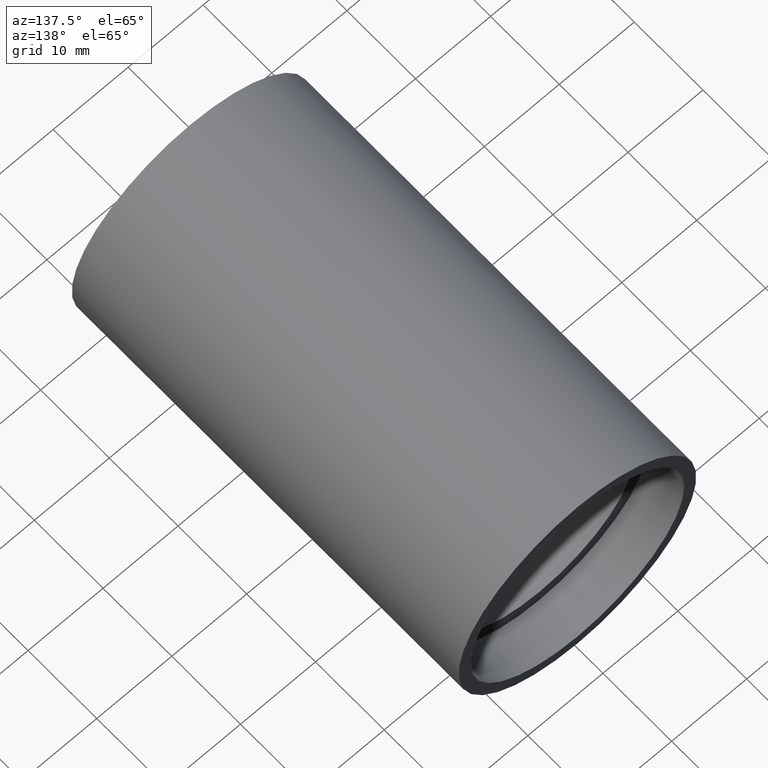
[diagram: clean part render]
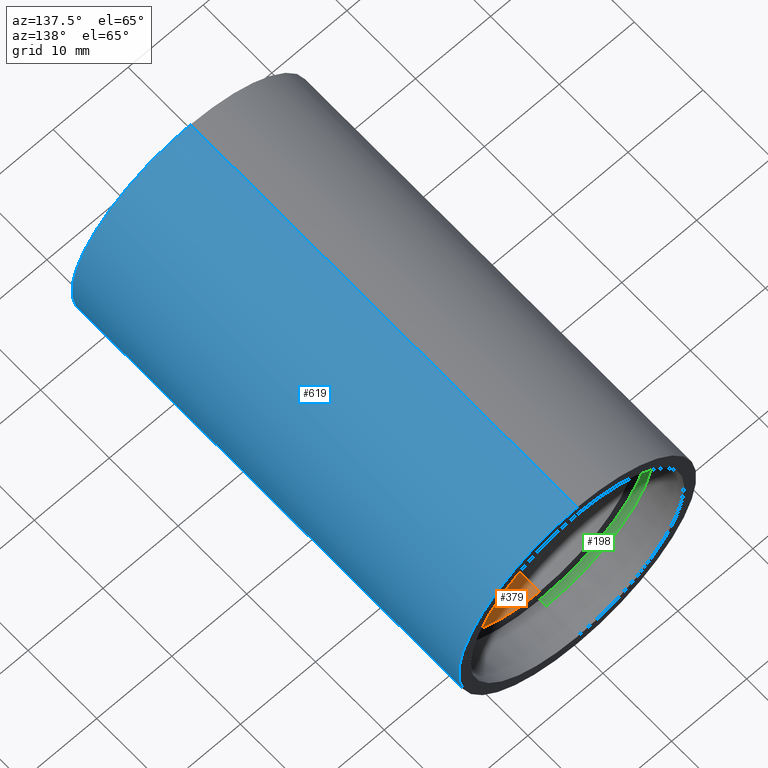
[diagram: same view with three faces highlighted in distinct colors, each labeled with its STEP entity id]
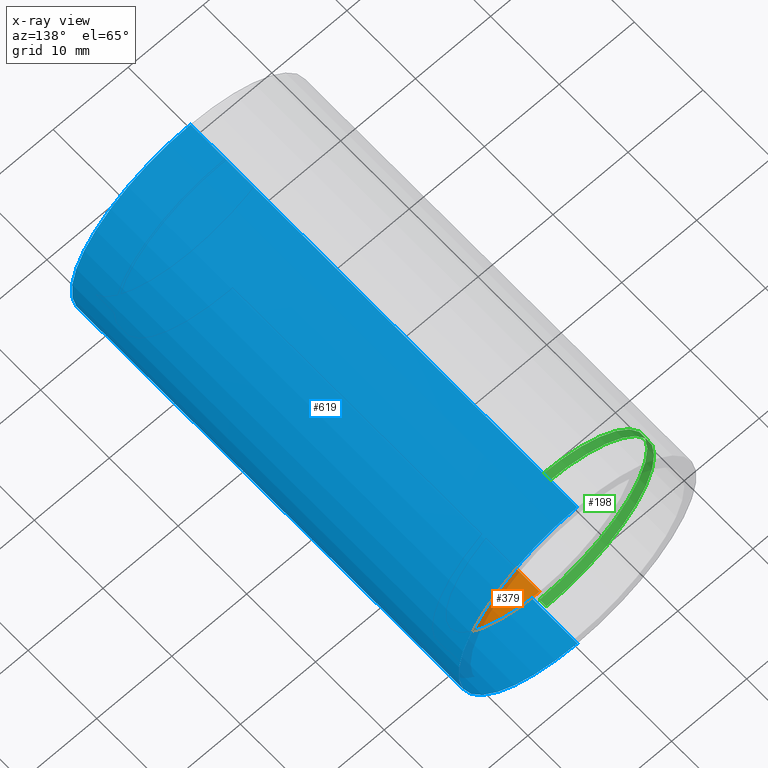
[diagram: x-ray of the same camera — body ghosted, the three highlighted faces saturated]
A machine part, auxiliary view with three faces highlighted in distinct colors.
The next image is the same camera in x-ray (body ghosted, the three faces saturated) — at least one of them is partly hidden behind the body in this view.
Their STEP definitions:

[orange] entity #379 — the highlighted cylindrical surface (partial cylindrical patch) has radius 12.5 mm, axis along (-0, 1, -0).
#4 = ORIENTED_EDGE ( 'NONE', *, *, #222, .T. ) ;
#8 = DIRECTION ( 'NONE',  ( 0.0000000000000000000, 0.0000000000000000000, 1.000000000000000000 ) ) ;
#38 = DIRECTION ( 'NONE',  ( -0.0000000000000000000, 1.000000000000000000, -0.0000000000000000000 ) ) ;
#41 = DIRECTION ( 'NONE',  ( -0.0000000000000000000, 1.000000000000000000, -0.0000000000000000000 ) ) ;
#44 = AXIS2_PLACEMENT_3D ( 'NONE', #85, #41, #144 ) ;
#50 = VERTEX_POINT ( 'NONE', #514 ) ;
#54 = CARTESIAN_POINT ( 'NONE',  ( 0.0000000000000000000, 161.3761669434274500, 0.0000000000000000000 ) ) ;
#85 = CARTESIAN_POINT ( 'NONE',  ( 0.0000000000000000000, 50.79999999999996900, 0.0000000000000000000 ) ) ;
#91 = CARTESIAN_POINT ( 'NONE',  ( 1.530808498934193900E-015, 50.79999999999996900, -12.50000000000002000 ) ) ;
#94 = CIRCLE ( 'NONE', #499, 12.50000000000002000 ) ;
#98 = DIRECTION ( 'NONE',  ( 0.0000000000000000000, 0.0000000000000000000, 1.000000000000000000 ) ) ;
#109 = LINE ( 'NONE', #574, #473 ) ;
#144 = DIRECTION ( 'NONE',  ( 0.0000000000000000000, 0.0000000000000000000, 1.000000000000000000 ) ) ;
#154 = DIRECTION ( 'NONE',  ( -0.0000000000000000000, 1.000000000000000000, -0.0000000000000000000 ) ) ;
#173 = EDGE_CURVE ( 'NONE', #50, #181, #109, .T. ) ;
#181 = VERTEX_POINT ( 'NONE', #424 ) ;
#207 = LINE ( 'NONE', #351, #456 ) ;
#222 = EDGE_CURVE ( 'NONE', #181, #333, #249, .T. ) ;
#248 = DIRECTION ( 'NONE',  ( -0.0000000000000000000, 1.000000000000000000, -0.0000000000000000000 ) ) ;
#249 = CIRCLE ( 'NONE', #44, 12.50000000000002000 ) ;
#333 = VERTEX_POINT ( 'NONE', #91 ) ;
#334 = CYLINDRICAL_SURFACE ( 'NONE', #606, 12.50000000000002000 ) ;
#345 = EDGE_CURVE ( 'NONE', #50, #542, #94, .T. ) ;
#351 = CARTESIAN_POINT ( 'NONE',  ( 1.530808498934193900E-015, 161.3761669434274500, -12.50000000000002000 ) ) ;
#355 = EDGE_CURVE ( 'NONE', #542, #333, #207, .T. ) ;
#379 = ADVANCED_FACE ( 'NONE', ( #581 ), #334, .F. ) ;
#382 = ORIENTED_EDGE ( 'NONE', *, *, #345, .F. ) ;
#406 = DIRECTION ( 'NONE',  ( -0.0000000000000000000, 1.000000000000000000, -0.0000000000000000000 ) ) ;
#424 = CARTESIAN_POINT ( 'NONE',  ( 0.0000000000000000000, 50.79999999999996900, 12.50000000000002000 ) ) ;
#453 = CARTESIAN_POINT ( 'NONE',  ( 0.0000000000000000000, 5.499999999999976900, 0.0000000000000000000 ) ) ;
#456 = VECTOR ( 'NONE', #154, 1000.000000000000000 ) ;
#473 = VECTOR ( 'NONE', #38, 1000.000000000000000 ) ;
#497 = ORIENTED_EDGE ( 'NONE', *, *, #355, .F. ) ;
#499 = AXIS2_PLACEMENT_3D ( 'NONE', #453, #248, #8 ) ;
#514 = CARTESIAN_POINT ( 'NONE',  ( 0.0000000000000000000, 5.499999999999976900, 12.50000000000002000 ) ) ;
#519 = ORIENTED_EDGE ( 'NONE', *, *, #173, .T. ) ;
#542 = VERTEX_POINT ( 'NONE', #593 ) ;
#574 = CARTESIAN_POINT ( 'NONE',  ( 0.0000000000000000000, 161.3761669434274500, 12.50000000000002000 ) ) ;
#581 = FACE_OUTER_BOUND ( 'NONE', #584, .T. ) ;
#584 = EDGE_LOOP ( 'NONE', ( #497, #382, #519, #4 ) ) ;
#593 = CARTESIAN_POINT ( 'NONE',  ( 1.530808498934193900E-015, 5.499999999999976900, -12.50000000000002000 ) ) ;
#606 = AXIS2_PLACEMENT_3D ( 'NONE', #54, #406, #98 ) ;

[blue] entity #619 — the highlighted cylindrical surface (partial cylindrical patch) has radius 15.85 mm, axis along (-0, 1, -0).
#2 = ORIENTED_EDGE ( 'NONE', *, *, #159, .T. ) ;
#7 = LINE ( 'NONE', #386, #153 ) ;
#11 = CARTESIAN_POINT ( 'NONE',  ( 1.941065176648557100E-015, 56.29999999999999000, -15.85000000000002100 ) ) ;
#12 = AXIS2_PLACEMENT_3D ( 'NONE', #34, #385, #185 ) ;
#34 = CARTESIAN_POINT ( 'NONE',  ( 0.0000000000000000000, -2.775557561562891400E-014, 0.0000000000000000000 ) ) ;
#77 = VERTEX_POINT ( 'NONE', #110 ) ;
#80 = AXIS2_PLACEMENT_3D ( 'NONE', #323, #320, #178 ) ;
#86 = DIRECTION ( 'NONE',  ( 0.0000000000000000000, 0.0000000000000000000, 1.000000000000000000 ) ) ;
#87 = LINE ( 'NONE', #623, #592 ) ;
#110 = CARTESIAN_POINT ( 'NONE',  ( 0.0000000000000000000, 56.29999999999999000, 15.85000000000002100 ) ) ;
#153 = VECTOR ( 'NONE', #435, 1000.000000000000000 ) ;
#159 = EDGE_CURVE ( 'NONE', #361, #340, #518, .T. ) ;
#178 = DIRECTION ( 'NONE',  ( 0.0000000000000000000, 0.0000000000000000000, 1.000000000000000000 ) ) ;
#182 = EDGE_CURVE ( 'NONE', #361, #77, #7, .T. ) ;
#185 = DIRECTION ( 'NONE',  ( 0.0000000000000000000, 0.0000000000000000000, 1.000000000000000000 ) ) ;
#231 = EDGE_CURVE ( 'NONE', #77, #375, #612, .T. ) ;
#261 = CYLINDRICAL_SURFACE ( 'NONE', #80, 15.85000000000002100 ) ;
#276 = EDGE_CURVE ( 'NONE', #340, #375, #87, .T. ) ;
#287 = EDGE_LOOP ( 'NONE', ( #2, #594, #409, #293 ) ) ;
#293 = ORIENTED_EDGE ( 'NONE', *, *, #182, .F. ) ;
#299 = CARTESIAN_POINT ( 'NONE',  ( 1.941065176648557100E-015, -2.775557561562891400E-014, -15.85000000000002100 ) ) ;
#305 = FACE_OUTER_BOUND ( 'NONE', #287, .T. ) ;
#306 = CARTESIAN_POINT ( 'NONE',  ( 0.0000000000000000000, -2.775557561562891400E-014, 15.85000000000002100 ) ) ;
#320 = DIRECTION ( 'NONE',  ( -0.0000000000000000000, 1.000000000000000000, -0.0000000000000000000 ) ) ;
#321 = AXIS2_PLACEMENT_3D ( 'NONE', #338, #535, #86 ) ;
#323 = CARTESIAN_POINT ( 'NONE',  ( 0.0000000000000000000, 161.3761669434274500, 0.0000000000000000000 ) ) ;
#338 = CARTESIAN_POINT ( 'NONE',  ( 0.0000000000000000000, 56.29999999999999000, 0.0000000000000000000 ) ) ;
#340 = VERTEX_POINT ( 'NONE', #299 ) ;
#361 = VERTEX_POINT ( 'NONE', #306 ) ;
#375 = VERTEX_POINT ( 'NONE', #11 ) ;
#385 = DIRECTION ( 'NONE',  ( -0.0000000000000000000, 1.000000000000000000, -0.0000000000000000000 ) ) ;
#386 = CARTESIAN_POINT ( 'NONE',  ( 0.0000000000000000000, 161.3761669434274500, 15.85000000000002100 ) ) ;
#409 = ORIENTED_EDGE ( 'NONE', *, *, #231, .F. ) ;
#435 = DIRECTION ( 'NONE',  ( -0.0000000000000000000, 1.000000000000000000, -0.0000000000000000000 ) ) ;
#439 = DIRECTION ( 'NONE',  ( -0.0000000000000000000, 1.000000000000000000, -0.0000000000000000000 ) ) ;
#518 = CIRCLE ( 'NONE', #12, 15.85000000000002100 ) ;
#535 = DIRECTION ( 'NONE',  ( -0.0000000000000000000, 1.000000000000000000, -0.0000000000000000000 ) ) ;
#592 = VECTOR ( 'NONE', #439, 1000.000000000000000 ) ;
#594 = ORIENTED_EDGE ( 'NONE', *, *, #276, .T. ) ;
#612 = CIRCLE ( 'NONE', #321, 15.85000000000002100 ) ;
#619 = ADVANCED_FACE ( 'NONE', ( #305 ), #261, .T. ) ;
#623 = CARTESIAN_POINT ( 'NONE',  ( 1.941065176648557100E-015, 161.3761669434274500, -15.85000000000002100 ) ) ;

[green] entity #198 — the highlighted cylindrical surface (partial cylindrical patch) has radius 14.35 mm, axis along (-0, 1, -0).
#16 = VERTEX_POINT ( 'NONE', #107 ) ;
#18 = CARTESIAN_POINT ( 'NONE',  ( 1.757368156776453600E-015, 51.79999999999996900, -14.35000000000001200 ) ) ;
#20 = VECTOR ( 'NONE', #22, 1000.000000000000000 ) ;
#22 = DIRECTION ( 'NONE',  ( -0.0000000000000000000, 1.000000000000000000, -0.0000000000000000000 ) ) ;
#27 = VERTEX_POINT ( 'NONE', #18 ) ;
#36 = CIRCLE ( 'NONE', #56, 14.35000000000001200 ) ;
#56 = AXIS2_PLACEMENT_3D ( 'NONE', #63, #408, #314 ) ;
#63 = CARTESIAN_POINT ( 'NONE',  ( 0.0000000000000000000, 50.79999999999996900, 0.0000000000000000000 ) ) ;
#78 = CARTESIAN_POINT ( 'NONE',  ( 0.0000000000000000000, 161.3761669434274500, 0.0000000000000000000 ) ) ;
#95 = EDGE_LOOP ( 'NONE', ( #390, #149, #112, #227 ) ) ;
#107 = CARTESIAN_POINT ( 'NONE',  ( 1.757368156776453600E-015, 50.79999999999996900, -14.35000000000001200 ) ) ;
#112 = ORIENTED_EDGE ( 'NONE', *, *, #472, .T. ) ;
#149 = ORIENTED_EDGE ( 'NONE', *, *, #512, .T. ) ;
#152 = CIRCLE ( 'NONE', #209, 14.35000000000001200 ) ;
#161 = DIRECTION ( 'NONE',  ( 0.0000000000000000000, 0.0000000000000000000, 1.000000000000000000 ) ) ;
#197 = AXIS2_PLACEMENT_3D ( 'NONE', #78, #281, #611 ) ;
#198 = ADVANCED_FACE ( 'NONE', ( #618 ), #510, .F. ) ;
#209 = AXIS2_PLACEMENT_3D ( 'NONE', #600, #597, #161 ) ;
#227 = ORIENTED_EDGE ( 'NONE', *, *, #562, .F. ) ;
#281 = DIRECTION ( 'NONE',  ( -0.0000000000000000000, 1.000000000000000000, -0.0000000000000000000 ) ) ;
#307 = CARTESIAN_POINT ( 'NONE',  ( 0.0000000000000000000, 50.79999999999996900, 14.35000000000001200 ) ) ;
#314 = DIRECTION ( 'NONE',  ( 0.0000000000000000000, 0.0000000000000000000, 1.000000000000000000 ) ) ;
#359 = CARTESIAN_POINT ( 'NONE',  ( 0.0000000000000000000, 161.3761669434274500, 14.35000000000001200 ) ) ;
#368 = LINE ( 'NONE', #359, #20 ) ;
#390 = ORIENTED_EDGE ( 'NONE', *, *, #505, .F. ) ;
#408 = DIRECTION ( 'NONE',  ( -0.0000000000000000000, 1.000000000000000000, -0.0000000000000000000 ) ) ;
#438 = VECTOR ( 'NONE', #546, 1000.000000000000000 ) ;
#461 = CARTESIAN_POINT ( 'NONE',  ( 0.0000000000000000000, 51.79999999999996900, 14.35000000000001200 ) ) ;
#468 = LINE ( 'NONE', #545, #438 ) ;
#472 = EDGE_CURVE ( 'NONE', #27, #534, #152, .T. ) ;
#505 = EDGE_CURVE ( 'NONE', #16, #529, #36, .T. ) ;
#510 = CYLINDRICAL_SURFACE ( 'NONE', #197, 14.35000000000001200 ) ;
#512 = EDGE_CURVE ( 'NONE', #16, #27, #468, .T. ) ;
#529 = VERTEX_POINT ( 'NONE', #307 ) ;
#534 = VERTEX_POINT ( 'NONE', #461 ) ;
#545 = CARTESIAN_POINT ( 'NONE',  ( 1.757368156776453600E-015, 161.3761669434274500, -14.35000000000001200 ) ) ;
#546 = DIRECTION ( 'NONE',  ( -0.0000000000000000000, 1.000000000000000000, -0.0000000000000000000 ) ) ;
#562 = EDGE_CURVE ( 'NONE', #529, #534, #368, .T. ) ;
#597 = DIRECTION ( 'NONE',  ( -0.0000000000000000000, 1.000000000000000000, -0.0000000000000000000 ) ) ;
#600 = CARTESIAN_POINT ( 'NONE',  ( 0.0000000000000000000, 51.79999999999996900, 0.0000000000000000000 ) ) ;
#611 = DIRECTION ( 'NONE',  ( 0.0000000000000000000, 0.0000000000000000000, 1.000000000000000000 ) ) ;
#618 = FACE_OUTER_BOUND ( 'NONE', #95, .T. ) ;